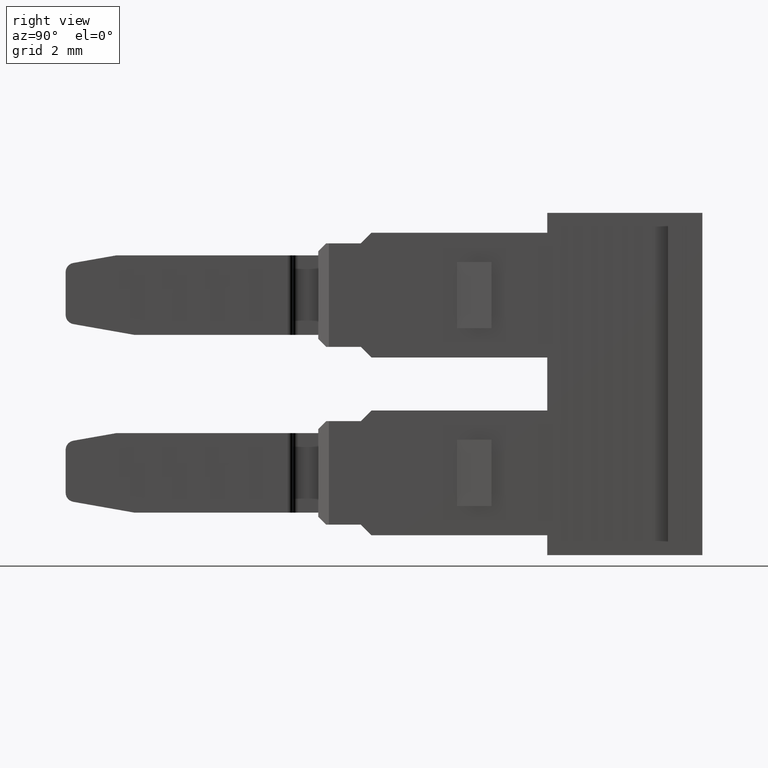
[diagram: clean part render]
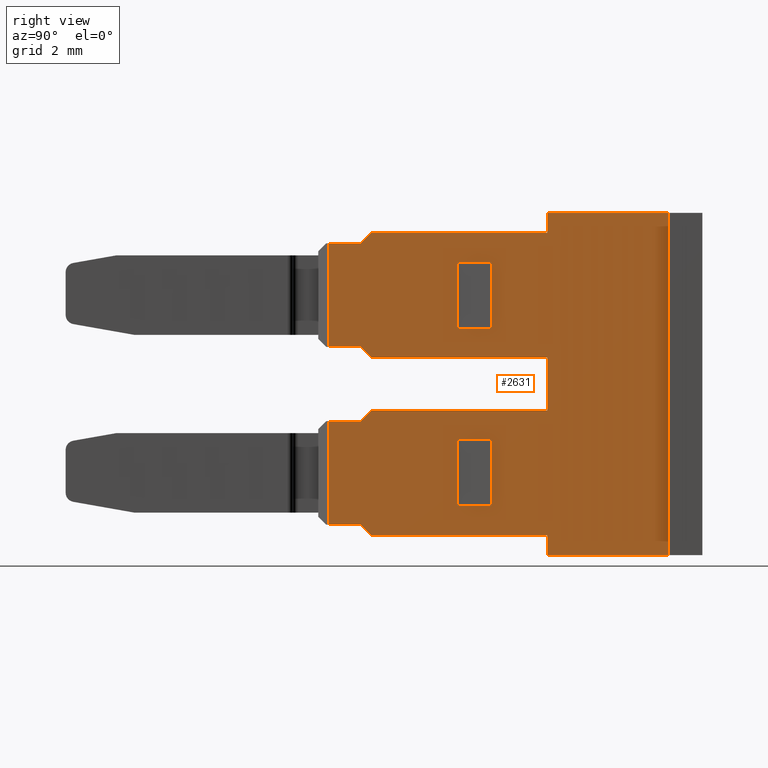
[diagram: same view with one face highlighted and labeled with its STEP entity id]
A machine part, right view. The second image highlights one B-rep face of the part: STEP entity #2631.
In plain terms, the highlighted planar face has unit normal (1, -0, 0).
Its self-contained STEP definition (entity closure, byte-faithful):
#7 = ORIENTED_EDGE ( 'NONE', *, *, #2470, .T. ) ;
#14 = ORIENTED_EDGE ( 'NONE', *, *, #2499, .F. ) ;
#27 = ORIENTED_EDGE ( 'NONE', *, *, #2415, .T. ) ;
#33 = ORIENTED_EDGE ( 'NONE', *, *, #2447, .F. ) ;
#66 = EDGE_LOOP ( 'NONE', ( #940, #917, #934, #938, #916, #914, #922, #927, #925, #950, #937, #939, #951, #918, #956, #952, #958, #961, #919, #923 ) ) ;
#73 = EDGE_LOOP ( 'NONE', ( #957, #924, #941, #33 ) ) ;
#81 = EDGE_LOOP ( 'NONE', ( #7, #27, #908, #14 ) ) ;
#144 = CARTESIAN_POINT ( 'NONE',  ( 1393.382384858510700, 1072.109123440685600, 9.050000000002393500 ) ) ;
#177 = CARTESIAN_POINT ( 'NONE',  ( 1393.382319419673200, 1065.079098784066700, 1.950000000035512200 ) ) ;
#186 = CARTESIAN_POINT ( 'NONE',  ( 1393.382364923140600, 1070.007091196375300, 1.249999999999765100 ) ) ;
#188 = CARTESIAN_POINT ( 'NONE',  ( 1393.382384858510900, 1072.109123472137800, 4.350000000002388800 ) ) ;
#197 = CARTESIAN_POINT ( 'NONE',  ( 1393.382319419673200, 1065.079098784066700, -1.950000000030728900 ) ) ;
#201 = CARTESIAN_POINT ( 'NONE',  ( 1393.382323213215600, 1065.479098784014900, -2.349999999997613100 ) ) ;
#203 = CARTESIAN_POINT ( 'NONE',  ( 1393.382384858510700, 1072.109123440697900, -3.099999999942417300 ) ) ;
#204 = CARTESIAN_POINT ( 'NONE',  ( 1393.382308020078900, 1063.877098784089600, 8.650000000035584300 ) ) ;
#208 = CARTESIAN_POINT ( 'NONE',  ( 1393.382319419673200, 1065.079098784066700, 4.749999999969273500 ) ) ;
#210 = CARTESIAN_POINT ( 'NONE',  ( 1393.382364923140600, 1070.007091196375300, 7.949999999999763000 ) ) ;
#212 = CARTESIAN_POINT ( 'NONE',  ( 1393.382323213215600, 1065.479098784014900, 4.350000000002388000 ) ) ;
#213 = CARTESIAN_POINT ( 'NONE',  ( 1393.382384858510700, 1072.109123440697900, -2.349999999997612200 ) ) ;
#214 = CARTESIAN_POINT ( 'NONE',  ( 1393.382308020078900, 1063.877098784089600, -1.950000000030507100 ) ) ;
#225 = CARTESIAN_POINT ( 'NONE',  ( 1393.382319419673200, 1065.079098784066700, 8.650000000035509700 ) ) ;
#227 = CARTESIAN_POINT ( 'NONE',  ( 1393.382352594128200, 1068.707091196434000, 7.949999999999763000 ) ) ;
#238 = CARTESIAN_POINT ( 'NONE',  ( 1393.382384858510700, 1072.109123440686100, 2.350000000002352000 ) ) ;
#241 = CARTESIAN_POINT ( 'NONE',  ( 1393.382364923140600, 1070.007091196375300, -1.250000000000237800 ) ) ;
#247 = CARTESIAN_POINT ( 'NONE',  ( 1393.382308020078900, 1063.877098784089600, 1.950000000035586400 ) ) ;
#249 = CARTESIAN_POINT ( 'NONE',  ( 1393.382323213215600, 1065.479098784015200, 9.050000000002391700 ) ) ;
#252 = CARTESIAN_POINT ( 'NONE',  ( 1393.382323213215600, 1065.479098784015200, 2.350000000002386600 ) ) ;
#259 = CARTESIAN_POINT ( 'NONE',  ( 1393.382364923140600, 1070.007091196375300, 5.449999999999762100 ) ) ;
#272 = CARTESIAN_POINT ( 'NONE',  ( 1393.382427990852000, 1076.657098783517300, -3.099999999942417300 ) ) ;
#274 = CARTESIAN_POINT ( 'NONE',  ( 1393.382427990852000, 1076.657098783518000, 9.800000000002388100 ) ) ;
#276 = CARTESIAN_POINT ( 'NONE',  ( 1393.382352594128200, 1068.707091196434000, -1.250000000000237800 ) ) ;
#277 = CARTESIAN_POINT ( 'NONE',  ( 1393.382308020078900, 1063.877098784089600, 4.749999999969497300 ) ) ;
#293 = CARTESIAN_POINT ( 'NONE',  ( 1393.382352594128200, 1068.707091196434000, 5.449999999999762100 ) ) ;
#301 = CARTESIAN_POINT ( 'NONE',  ( 1393.382352594128200, 1068.707091196434000, 1.249999999999762600 ) ) ;
#302 = CARTESIAN_POINT ( 'NONE',  ( 1393.382384858510700, 1072.109123440685600, 9.800000000002386400 ) ) ;
#317 = CARTESIAN_POINT ( 'NONE',  ( 1393.382396617263300, 1073.348993924947500, 4.350000000002388800 ) ) ;
#342 = DIRECTION ( 'NONE',  ( -9.483855583750710300E-006, -0.9999999999550282000, -1.120667772762481900E-016 ) ) ;
#351 = LINE ( 'NONE', #317, #2356 ) ;
#363 = DIRECTION ( 'NONE',  ( 0.0000000000000000000, 0.0000000000000000000, 1.000000000000000000 ) ) ;
#368 = LINE ( 'NONE', #380, #2391 ) ;
#369 = DIRECTION ( 'NONE',  ( -9.483855583750710300E-006, -0.9999999999550282000, 2.389095031153598600E-030 ) ) ;
#370 = DIRECTION ( 'NONE',  ( -9.483855583750710300E-006, -0.9999999999550282000, -5.337853267083975600E-030 ) ) ;
#371 = CARTESIAN_POINT ( 'NONE',  ( 1393.382319421650900, 1065.079307296093500, -1.950000000030796700 ) ) ;
#375 = LINE ( 'NONE', #371, #2381 ) ;
#379 = CARTESIAN_POINT ( 'NONE',  ( 1393.382384858510700, 1072.109123440697900, -4.149999999864966100 ) ) ;
#380 = CARTESIAN_POINT ( 'NONE',  ( 1393.382352594128200, 1068.707091196434000, -1.250000000000237800 ) ) ;
#387 = DIRECTION ( 'NONE',  ( 1.714874837963338900E-015, -1.626362524897224600E-020, -1.000000000000000000 ) ) ;
#391 = LINE ( 'NONE', #392, #2371 ) ;
#392 = CARTESIAN_POINT ( 'NONE',  ( 1393.382341695199600, 1067.557882584606000, 9.800000000002388100 ) ) ;
#394 = LINE ( 'NONE', #395, #2387 ) ;
#395 = CARTESIAN_POINT ( 'NONE',  ( 1393.382319421650900, 1065.079307296093500, 1.950000000035573300 ) ) ;
#396 = LINE ( 'NONE', #379, #2377 ) ;
#397 = DIRECTION ( 'NONE',  ( 9.483855583750710300E-006, 0.9999999999550282000, -2.389095031153598600E-030 ) ) ;
#426 = VERTEX_POINT ( 'NONE', #177 ) ;
#427 = VERTEX_POINT ( 'NONE', #144 ) ;
#428 = VERTEX_POINT ( 'NONE', #186 ) ;
#432 = VERTEX_POINT ( 'NONE', #188 ) ;
#448 = VERTEX_POINT ( 'NONE', #197 ) ;
#451 = VERTEX_POINT ( 'NONE', #201 ) ;
#455 = VERTEX_POINT ( 'NONE', #247 ) ;
#458 = VERTEX_POINT ( 'NONE', #208 ) ;
#459 = VERTEX_POINT ( 'NONE', #252 ) ;
#462 = VERTEX_POINT ( 'NONE', #214 ) ;
#464 = VERTEX_POINT ( 'NONE', #212 ) ;
#474 = VERTEX_POINT ( 'NONE', #249 ) ;
#475 = VERTEX_POINT ( 'NONE', #238 ) ;
#478 = VERTEX_POINT ( 'NONE', #213 ) ;
#484 = VERTEX_POINT ( 'NONE', #203 ) ;
#485 = VERTEX_POINT ( 'NONE', #204 ) ;
#494 = VERTEX_POINT ( 'NONE', #227 ) ;
#496 = VERTEX_POINT ( 'NONE', #210 ) ;
#500 = VERTEX_POINT ( 'NONE', #241 ) ;
#501 = VERTEX_POINT ( 'NONE', #225 ) ;
#513 = VERTEX_POINT ( 'NONE', #274 ) ;
#519 = VERTEX_POINT ( 'NONE', #272 ) ;
#533 = VERTEX_POINT ( 'NONE', #277 ) ;
#534 = VERTEX_POINT ( 'NONE', #276 ) ;
#536 = VERTEX_POINT ( 'NONE', #259 ) ;
#546 = VERTEX_POINT ( 'NONE', #293 ) ;
#552 = VERTEX_POINT ( 'NONE', #301 ) ;
#553 = VERTEX_POINT ( 'NONE', #302 ) ;
#908 = ORIENTED_EDGE ( 'NONE', *, *, #2479, .F. ) ;
#914 = ORIENTED_EDGE ( 'NONE', *, *, #2420, .F. ) ;
#916 = ORIENTED_EDGE ( 'NONE', *, *, #2452, .T. ) ;
#917 = ORIENTED_EDGE ( 'NONE', *, *, #2397, .F. ) ;
#918 = ORIENTED_EDGE ( 'NONE', *, *, #2417, .T. ) ;
#919 = ORIENTED_EDGE ( 'NONE', *, *, #2461, .T. ) ;
#922 = ORIENTED_EDGE ( 'NONE', *, *, #2441, .T. ) ;
#923 = ORIENTED_EDGE ( 'NONE', *, *, #2509, .T. ) ;
#924 = ORIENTED_EDGE ( 'NONE', *, *, #2469, .T. ) ;
#925 = ORIENTED_EDGE ( 'NONE', *, *, #2454, .T. ) ;
#927 = ORIENTED_EDGE ( 'NONE', *, *, #2418, .F. ) ;
#934 = ORIENTED_EDGE ( 'NONE', *, *, #2512, .F. ) ;
#937 = ORIENTED_EDGE ( 'NONE', *, *, #2416, .T. ) ;
#938 = ORIENTED_EDGE ( 'NONE', *, *, #2449, .F. ) ;
#939 = ORIENTED_EDGE ( 'NONE', *, *, #2504, .T. ) ;
#940 = ORIENTED_EDGE ( 'NONE', *, *, #2434, .F. ) ;
#941 = ORIENTED_EDGE ( 'NONE', *, *, #2474, .F. ) ;
#950 = ORIENTED_EDGE ( 'NONE', *, *, #2446, .F. ) ;
#951 = ORIENTED_EDGE ( 'NONE', *, *, #2494, .T. ) ;
#952 = ORIENTED_EDGE ( 'NONE', *, *, #2472, .F. ) ;
#956 = ORIENTED_EDGE ( 'NONE', *, *, #2516, .T. ) ;
#957 = ORIENTED_EDGE ( 'NONE', *, *, #2426, .T. ) ;
#958 = ORIENTED_EDGE ( 'NONE', *, *, #2457, .T. ) ;
#961 = ORIENTED_EDGE ( 'NONE', *, *, #2497, .F. ) ;
#1148 = CARTESIAN_POINT ( 'NONE',  ( 1393.382352594128200, 1068.707091196434000, 5.449999999999762100 ) ) ;
#1156 = CARTESIAN_POINT ( 'NONE',  ( 1393.382319419673200, 1065.079098784066700, 4.749999999969200600 ) ) ;
#1161 = LINE ( 'NONE', #1156, #2039 ) ;
#1169 = LINE ( 'NONE', #1148, #2382 ) ;
#1170 = DIRECTION ( 'NONE',  ( -6.706098596277136100E-006, -0.7071067811548011900, 0.7071067811864939500 ) ) ;
#1174 = DIRECTION ( 'NONE',  ( -9.483855581204527600E-006, -0.9999999999550282000, -0.0000000000000000000 ) ) ;
#1188 = DIRECTION ( 'NONE',  ( 0.0000000000000000000, 0.0000000000000000000, 1.000000000000000000 ) ) ;
#1189 = DIRECTION ( 'NONE',  ( -6.706098593851936800E-006, -0.7071067811548011900, -0.7071067811864939500 ) ) ;
#1191 = LINE ( 'NONE', #1279, #2062 ) ;
#1192 = LINE ( 'NONE', #1204, #2040 ) ;
#1194 = DIRECTION ( 'NONE',  ( -9.483855583750710300E-006, -0.9999999999550282000, -1.120667772762481900E-016 ) ) ;
#1196 = CARTESIAN_POINT ( 'NONE',  ( 1393.382113227151000, 1043.337675100521200, -19.79142368448424000 ) ) ;
#1198 = LINE ( 'NONE', #1196, #2057 ) ;
#1199 = CARTESIAN_POINT ( 'NONE',  ( 1393.382396617263300, 1073.218993924947400, -2.349999999997611800 ) ) ;
#1203 = CARTESIAN_POINT ( 'NONE',  ( 1393.382364923140600, 1070.007091196375300, 5.449999999999762100 ) ) ;
#1204 = CARTESIAN_POINT ( 'NONE',  ( 1393.382396617263300, 1073.218993924947400, 2.350000000002388800 ) ) ;
#1213 = DIRECTION ( 'NONE',  ( 9.483855583750710300E-006, 0.9999999999550282000, 2.241335545524812400E-016 ) ) ;
#1217 = LINE ( 'NONE', #1230, #2038 ) ;
#1218 = DIRECTION ( 'NONE',  ( 1.714438068883926900E-015, -4.605397349032980000E-014, -1.000000000000000000 ) ) ;
#1221 = LINE ( 'NONE', #1203, #2054 ) ;
#1224 = LINE ( 'NONE', #1199, #2041 ) ;
#1230 = CARTESIAN_POINT ( 'NONE',  ( 1393.382308020079100, 1063.877098784087400, -50.53084736897763200 ) ) ;
#1235 = DIRECTION ( 'NONE',  ( 6.706098596277136100E-006, 0.7071067811548011900, -0.7071067811864939500 ) ) ;
#1237 = LINE ( 'NONE', #1264, #2056 ) ;
#1238 = CARTESIAN_POINT ( 'NONE',  ( 1393.382352594128200, 1068.707091196434000, 5.449999999999762100 ) ) ;
#1249 = CARTESIAN_POINT ( 'NONE',  ( 1393.382308020079100, 1063.877098784086900, -50.53084736897763200 ) ) ;
#1256 = LINE ( 'NONE', #1238, #2068 ) ;
#1261 = DIRECTION ( 'NONE',  ( 1.714438068883926900E-015, -4.605397349032980000E-014, -1.000000000000000000 ) ) ;
#1264 = CARTESIAN_POINT ( 'NONE',  ( 1393.382592454409900, 1093.868522467229200, -30.73942368448381000 ) ) ;
#1267 = DIRECTION ( 'NONE',  ( -6.706098593851936800E-006, -0.7071067811548011900, -0.7071067811864939500 ) ) ;
#1271 = LINE ( 'NONE', #1317, #2083 ) ;
#1278 = LINE ( 'NONE', #1249, #2081 ) ;
#1279 = CARTESIAN_POINT ( 'NONE',  ( 1393.382081456234800, 1039.987675100672000, -16.44142368448373800 ) ) ;
#1282 = LINE ( 'NONE', #1295, #2084 ) ;
#1284 = DIRECTION ( 'NONE',  ( 0.0000000000000000000, 0.0000000000000000000, 1.000000000000000000 ) ) ;
#1286 = CARTESIAN_POINT ( 'NONE',  ( 1393.382396617263300, 1073.348993924947500, 9.050000000002393500 ) ) ;
#1295 = CARTESIAN_POINT ( 'NONE',  ( 1393.382352594128200, 1068.707091196434000, -1.250000000000237800 ) ) ;
#1304 = CARTESIAN_POINT ( 'NONE',  ( 1393.382352594128200, 1068.707091196434000, 1.249999999999762600 ) ) ;
#1309 = DIRECTION ( 'NONE',  ( -9.483855581204527600E-006, -0.9999999999550282000, -0.0000000000000000000 ) ) ;
#1311 = LINE ( 'NONE', #1304, #2092 ) ;
#1314 = LINE ( 'NONE', #1286, #2104 ) ;
#1317 = CARTESIAN_POINT ( 'NONE',  ( 1393.382352594128200, 1068.707091196434000, 7.949999999999763000 ) ) ;
#1318 = DIRECTION ( 'NONE',  ( -9.483855581204527600E-006, -0.9999999999550282000, -0.0000000000000000000 ) ) ;
#1324 = DIRECTION ( 'NONE',  ( -9.483855581204527600E-006, -0.9999999999550282000, -0.0000000000000000000 ) ) ;
#1325 = DIRECTION ( 'NONE',  ( 9.483855583750710300E-006, 0.9999999999550282000, 2.241335545524812400E-016 ) ) ;
#1330 = CARTESIAN_POINT ( 'NONE',  ( 1393.382364923140600, 1070.007091196375300, -1.250000000000237800 ) ) ;
#1335 = DIRECTION ( 'NONE',  ( 0.0000000000000000000, 0.0000000000000000000, 1.000000000000000000 ) ) ;
#1345 = CARTESIAN_POINT ( 'NONE',  ( 1393.382427990852200, 1076.657098783514800, -50.53084736897823600 ) ) ;
#1347 = DIRECTION ( 'NONE',  ( -1.714375413516005400E-015, 5.266050259226226300E-014, 1.000000000000000000 ) ) ;
#1349 = LINE ( 'NONE', #1361, #2069 ) ;
#1358 = LINE ( 'NONE', #1345, #2072 ) ;
#1361 = CARTESIAN_POINT ( 'NONE',  ( 1393.382319421650900, 1065.079307296093500, 8.650000000035571900 ) ) ;
#1364 = DIRECTION ( 'NONE',  ( 9.483855583750710300E-006, 0.9999999999550282000, -2.389095031153598600E-030 ) ) ;
#1369 = LINE ( 'NONE', #1330, #2065 ) ;
#1375 = DIRECTION ( 'NONE',  ( 9.483855583750710300E-006, 0.9999999999550282000, -3.130996347652481000E-030 ) ) ;
#1378 = CARTESIAN_POINT ( 'NONE',  ( 1393.382438900884600, 1077.807478227277400, -3.099999999942417300 ) ) ;
#1387 = LINE ( 'NONE', #1378, #2090 ) ;
#1388 = CARTESIAN_POINT ( 'NONE',  ( 1393.382404755406000, 1074.077098783628100, 4.749999999969209500 ) ) ;
#1392 = LINE ( 'NONE', #1393, #2157 ) ;
#1393 = CARTESIAN_POINT ( 'NONE',  ( 1393.382384858510700, 1072.109123440686300, 5.351675905081232400 ) ) ;
#1397 = LINE ( 'NONE', #1388, #2114 ) ;
#1398 = DIRECTION ( 'NONE',  ( 9.483855583750710300E-006, 0.9999999999550282000, -2.389095031153598600E-030 ) ) ;
#1410 = DIRECTION ( 'NONE',  ( -1.714375413515915900E-015, 5.266050260173267100E-014, 1.000000000000000000 ) ) ;
#1412 = LINE ( 'NONE', #1417, #2167 ) ;
#1417 = CARTESIAN_POINT ( 'NONE',  ( 1393.382384858510700, 1072.109123440683300, -50.53084736897798700 ) ) ;
#1428 = DIRECTION ( 'NONE',  ( 1.714375413515915900E-015, -5.266050260173267100E-014, -1.000000000000000000 ) ) ;
#1870 = PLANE ( 'NONE',  #2270 ) ;
#1881 = FACE_OUTER_BOUND ( 'NONE', #66, .T. ) ;
#1884 = FACE_BOUND ( 'NONE', #73, .T. ) ;
#1892 = FACE_BOUND ( 'NONE', #81, .T. ) ;
#1910 = CARTESIAN_POINT ( 'NONE',  ( 1393.382404755406000, 1074.077098783628100, -50.53084736897810100 ) ) ;
#1917 = DIRECTION ( 'NONE',  ( 0.9999999999550283100, -9.483855583750712000E-006, 1.714874838040459600E-015 ) ) ;
#1918 = DIRECTION ( 'NONE',  ( 9.483855583750710300E-006, 0.9999999999550282000, 0.0000000000000000000 ) ) ;
#2038 = VECTOR ( 'NONE', #1218, 1000.000000000000000 ) ;
#2039 = VECTOR ( 'NONE', #1170, 1000.000000000000100 ) ;
#2040 = VECTOR ( 'NONE', #1213, 1000.000000000000200 ) ;
#2041 = VECTOR ( 'NONE', #1194, 1000.000000000000200 ) ;
#2054 = VECTOR ( 'NONE', #1188, 1000.000000000000000 ) ;
#2056 = VECTOR ( 'NONE', #1235, 1000.000000000000100 ) ;
#2057 = VECTOR ( 'NONE', #1189, 1000.000000000000100 ) ;
#2062 = VECTOR ( 'NONE', #1267, 1000.000000000000100 ) ;
#2065 = VECTOR ( 'NONE', #1335, 1000.000000000000000 ) ;
#2068 = VECTOR ( 'NONE', #1284, 1000.000000000000000 ) ;
#2069 = VECTOR ( 'NONE', #1364, 1000.000000000000200 ) ;
#2072 = VECTOR ( 'NONE', #1347, 1000.000000000000000 ) ;
#2081 = VECTOR ( 'NONE', #1261, 1000.000000000000000 ) ;
#2083 = VECTOR ( 'NONE', #1309, 1000.000000000000100 ) ;
#2084 = VECTOR ( 'NONE', #1324, 1000.000000000000100 ) ;
#2090 = VECTOR ( 'NONE', #1375, 1000.000000000000200 ) ;
#2092 = VECTOR ( 'NONE', #1318, 1000.000000000000100 ) ;
#2104 = VECTOR ( 'NONE', #1325, 1000.000000000000200 ) ;
#2114 = VECTOR ( 'NONE', #1398, 1000.000000000000200 ) ;
#2157 = VECTOR ( 'NONE', #1410, 1000.000000000000000 ) ;
#2167 = VECTOR ( 'NONE', #1428, 1000.000000000000000 ) ;
#2270 = AXIS2_PLACEMENT_3D ( 'NONE', #1910, #1917, #1918 ) ;
#2356 = VECTOR ( 'NONE', #342, 1000.000000000000200 ) ;
#2371 = VECTOR ( 'NONE', #370, 1000.000000000000200 ) ;
#2377 = VECTOR ( 'NONE', #387, 1000.000000000000000 ) ;
#2381 = VECTOR ( 'NONE', #369, 1000.000000000000200 ) ;
#2382 = VECTOR ( 'NONE', #1174, 1000.000000000000100 ) ;
#2387 = VECTOR ( 'NONE', #397, 1000.000000000000200 ) ;
#2391 = VECTOR ( 'NONE', #363, 1000.000000000000000 ) ;
#2397 = EDGE_CURVE ( 'NONE', #432, #464, #351, .T. ) ;
#2415 = EDGE_CURVE ( 'NONE', #534, #552, #368, .T. ) ;
#2416 = EDGE_CURVE ( 'NONE', #478, #484, #396, .T. ) ;
#2417 = EDGE_CURVE ( 'NONE', #513, #553, #391, .T. ) ;
#2418 = EDGE_CURVE ( 'NONE', #448, #462, #375, .T. ) ;
#2420 = EDGE_CURVE ( 'NONE', #455, #426, #394, .T. ) ;
#2426 = EDGE_CURVE ( 'NONE', #536, #546, #1169, .T. ) ;
#2434 = EDGE_CURVE ( 'NONE', #464, #458, #1161, .T. ) ;
#2441 = EDGE_CURVE ( 'NONE', #455, #462, #1217, .T. ) ;
#2446 = EDGE_CURVE ( 'NONE', #478, #451, #1224, .T. ) ;
#2447 = EDGE_CURVE ( 'NONE', #536, #496, #1221, .T. ) ;
#2449 = EDGE_CURVE ( 'NONE', #459, #475, #1192, .T. ) ;
#2452 = EDGE_CURVE ( 'NONE', #459, #426, #1198, .T. ) ;
#2454 = EDGE_CURVE ( 'NONE', #448, #451, #1237, .T. ) ;
#2457 = EDGE_CURVE ( 'NONE', #474, #501, #1191, .T. ) ;
#2461 = EDGE_CURVE ( 'NONE', #485, #533, #1278, .T. ) ;
#2469 = EDGE_CURVE ( 'NONE', #546, #494, #1256, .T. ) ;
#2470 = EDGE_CURVE ( 'NONE', #500, #534, #1282, .T. ) ;
#2472 = EDGE_CURVE ( 'NONE', #474, #427, #1314, .T. ) ;
#2474 = EDGE_CURVE ( 'NONE', #496, #494, #1271, .T. ) ;
#2479 = EDGE_CURVE ( 'NONE', #428, #552, #1311, .T. ) ;
#2494 = EDGE_CURVE ( 'NONE', #519, #513, #1358, .T. ) ;
#2497 = EDGE_CURVE ( 'NONE', #485, #501, #1349, .T. ) ;
#2499 = EDGE_CURVE ( 'NONE', #500, #428, #1369, .T. ) ;
#2504 = EDGE_CURVE ( 'NONE', #484, #519, #1387, .T. ) ;
#2509 = EDGE_CURVE ( 'NONE', #533, #458, #1397, .T. ) ;
#2512 = EDGE_CURVE ( 'NONE', #475, #432, #1392, .T. ) ;
#2516 = EDGE_CURVE ( 'NONE', #553, #427, #1412, .T. ) ;
#2631 = ADVANCED_FACE ( 'NONE', ( #1881, #1884, #1892 ), #1870, .T. ) ;